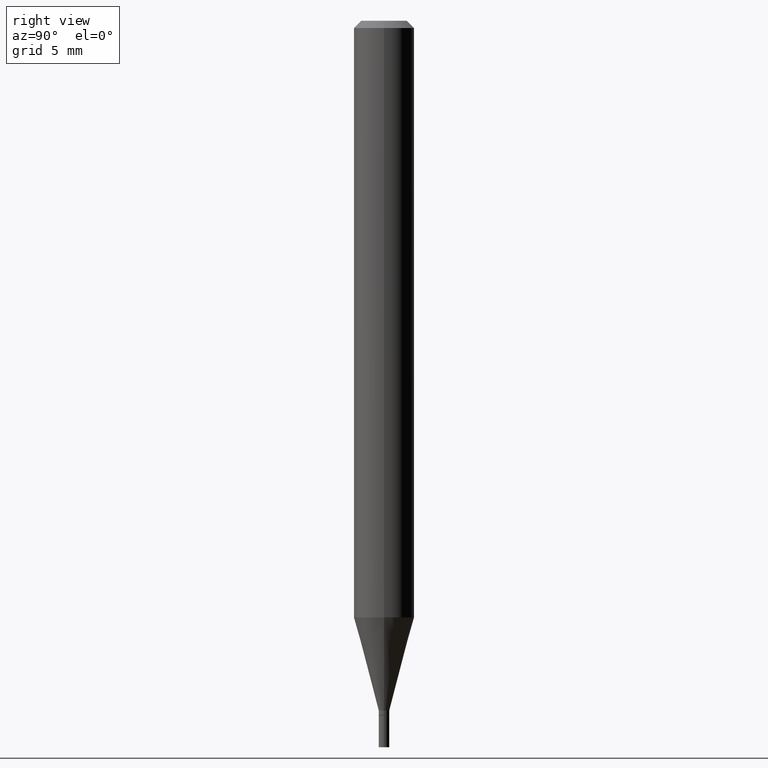
[diagram: clean part render]
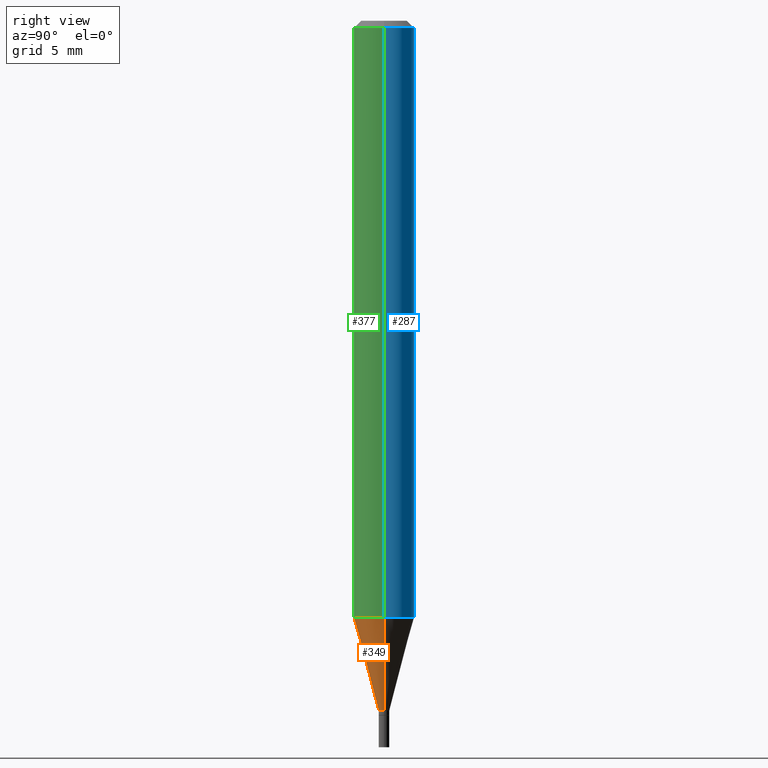
[diagram: same view with three faces highlighted in distinct colors, each labeled with its STEP entity id]
A machine part, right view with three faces highlighted in distinct colors.
Their STEP definitions:

[orange] entity #349 — the highlighted conical surface has half-angle 15 deg.
#5 = DIRECTION ( 'NONE',  ( 1.000000000000000000, -6.982962677686295898E-15, 0.000000000000000000 ) ) ;
#6 = ORIENTED_EDGE ( 'NONE', *, *, #160, .T. ) ;
#8 = VERTEX_POINT ( 'NONE', #300 ) ;
#18 = LINE ( 'NONE', #233, #48 ) ;
#22 = DIRECTION ( 'NONE',  ( 1.000000000000000000, -6.982962677686262766E-15, 0.000000000000000000 ) ) ;
#31 = EDGE_CURVE ( 'NONE', #152, #283, #18, .T. ) ;
#41 = CARTESIAN_POINT ( 'NONE',  ( 3.482347580007634944E-29, -4.971869426512640168E-15, -1.424000000000000155 ) ) ;
#48 = VECTOR ( 'NONE', #90, 39.37007874015748143 ) ;
#51 = EDGE_LOOP ( 'NONE', ( #275, #190, #6, #289 ) ) ;
#67 = CIRCLE ( 'NONE', #329, 0.06250000000000000000 ) ;
#77 = DIRECTION ( 'NONE',  ( -2.445468806185136597E-29, 3.491481338843145583E-15, 1.000000000000000000 ) ) ;
#90 = DIRECTION ( 'NONE',  ( -0.2588190451025216832, 5.211531920934551831E-15, 0.9659258262890679791 ) ) ;
#92 = EDGE_CURVE ( 'NONE', #283, #301, #67, .T. ) ;
#99 = CARTESIAN_POINT ( 'NONE',  ( 3.012326967607737433E-29, -4.300804560375218494E-15, -1.231799383410203452 ) ) ;
#131 = DIRECTION ( 'NONE',  ( -2.445468806185136597E-29, 3.491481338843145583E-15, 1.000000000000000000 ) ) ;
#143 = CARTESIAN_POINT ( 'NONE',  ( 0.01099999999999991956, -5.048682015967188692E-15, -1.424000000000000155 ) ) ;
#144 = DIRECTION ( 'NONE',  ( -2.445468806185136597E-29, 3.491481338843145583E-15, 1.000000000000000000 ) ) ;
#152 = VERTEX_POINT ( 'NONE', #465 ) ;
#160 = EDGE_CURVE ( 'NONE', #8, #301, #345, .T. ) ;
#177 = CONICAL_SURFACE ( 'NONE', #280, 0.01099999999999991956, 0.2617993877991502960 ) ;
#190 = ORIENTED_EDGE ( 'NONE', *, *, #442, .T. ) ;
#213 = CARTESIAN_POINT ( 'NONE',  ( -0.06249999999999997918, -3.856715350525155878E-15, -1.231799383410203452 ) ) ;
#233 = CARTESIAN_POINT ( 'NONE',  ( -0.01099999999999991956, -4.893709725579029078E-15, -1.424000000000000155 ) ) ;
#241 = DIRECTION ( 'NONE',  ( 0.2588190451025216832, 1.565188264969619798E-15, 0.9659258262890679791 ) ) ;
#243 = CIRCLE ( 'NONE', #362, 0.01099999999999991956 ) ;
#252 = DIRECTION ( 'NONE',  ( 1.000000000000000000, -6.982962677686295898E-15, 0.000000000000000000 ) ) ;
#275 = ORIENTED_EDGE ( 'NONE', *, *, #31, .F. ) ;
#280 = AXIS2_PLACEMENT_3D ( 'NONE', #41, #77, #252 ) ;
#283 = VERTEX_POINT ( 'NONE', #213 ) ;
#289 = ORIENTED_EDGE ( 'NONE', *, *, #92, .F. ) ;
#300 = CARTESIAN_POINT ( 'NONE',  ( 0.01099999999999991956, -5.048682015967188692E-15, -1.424000000000000155 ) ) ;
#301 = VERTEX_POINT ( 'NONE', #440 ) ;
#329 = AXIS2_PLACEMENT_3D ( 'NONE', #99, #131, #22 ) ;
#345 = LINE ( 'NONE', #143, #388 ) ;
#349 = ADVANCED_FACE ( 'NONE', ( #356 ), #177, .T. ) ;
#356 = FACE_OUTER_BOUND ( 'NONE', #51, .T. ) ;
#362 = AXIS2_PLACEMENT_3D ( 'NONE', #437, #144, #5 ) ;
#388 = VECTOR ( 'NONE', #241, 39.37007874015748143 ) ;
#437 = CARTESIAN_POINT ( 'NONE',  ( 3.482347580007634944E-29, -4.971869426512640168E-15, -1.424000000000000155 ) ) ;
#440 = CARTESIAN_POINT ( 'NONE',  ( 0.06249999999999997918, -4.737239727730610164E-15, -1.231799383410203452 ) ) ;
#442 = EDGE_CURVE ( 'NONE', #152, #8, #243, .T. ) ;
#465 = CARTESIAN_POINT ( 'NONE',  ( -0.01099999999999991956, -4.375212538052092478E-15, -1.424000000000000155 ) ) ;

[blue] entity #287 — the highlighted cylindrical surface (edge-blend (fillet) strip) has radius 1.5875 mm, axis along (-0, 0, 1).
#33 = AXIS2_PLACEMENT_3D ( 'NONE', #116, #36, #466 ) ;
#36 = DIRECTION ( 'NONE',  ( -2.445468806185136597E-29, 3.491481338843145583E-15, 1.000000000000000000 ) ) ;
#38 = VERTEX_POINT ( 'NONE', #372 ) ;
#40 = AXIS2_PLACEMENT_3D ( 'NONE', #221, #121, #364 ) ;
#94 = EDGE_CURVE ( 'NONE', #301, #401, #272, .T. ) ;
#107 = EDGE_CURVE ( 'NONE', #283, #38, #168, .T. ) ;
#116 = CARTESIAN_POINT ( 'NONE',  ( 3.012326967607737433E-29, -4.300804560375218494E-15, -1.231799383410203452 ) ) ;
#121 = DIRECTION ( 'NONE',  ( -2.445468806185136597E-29, 3.491481338843145583E-15, 1.000000000000000000 ) ) ;
#122 = ORIENTED_EDGE ( 'NONE', *, *, #107, .T. ) ;
#133 = VECTOR ( 'NONE', #385, 39.37007874015748143 ) ;
#147 = DIRECTION ( 'NONE',  ( 1.000000000000000000, -6.982962677686266711E-15, 4.876176775795935793E-29 ) ) ;
#149 = CYLINDRICAL_SURFACE ( 'NONE', #257, 0.06250000000000000000 ) ;
#153 = CIRCLE ( 'NONE', #33, 0.06250000000000000000 ) ;
#168 = LINE ( 'NONE', #171, #133 ) ;
#171 = CARTESIAN_POINT ( 'NONE',  ( -0.06250000000000000000, 4.440892098500626162E-16, -3.074334431409316114E-30 ) ) ;
#184 = CARTESIAN_POINT ( 'NONE',  ( 0.06250000000000000000, -4.888073874380388472E-16, -0.01499999999999999944 ) ) ;
#199 = CIRCLE ( 'NONE', #40, 0.06250000000000000000 ) ;
#213 = CARTESIAN_POINT ( 'NONE',  ( -0.06249999999999997918, -3.856715350525155878E-15, -1.231799383410203452 ) ) ;
#221 = CARTESIAN_POINT ( 'NONE',  ( 3.668203209277705088E-31, -5.237222008264718399E-17, -0.01499999999999999944 ) ) ;
#238 = DIRECTION ( 'NONE',  ( -2.445468806185136877E-29, 3.491481338843145188E-15, 1.000000000000000000 ) ) ;
#257 = AXIS2_PLACEMENT_3D ( 'NONE', #394, #297, #147 ) ;
#272 = LINE ( 'NONE', #412, #420 ) ;
#283 = VERTEX_POINT ( 'NONE', #213 ) ;
#287 = ADVANCED_FACE ( 'NONE', ( #430 ), #149, .T. ) ;
#297 = DIRECTION ( 'NONE',  ( -2.445468806185136597E-29, 3.491481338843145583E-15, 1.000000000000000000 ) ) ;
#301 = VERTEX_POINT ( 'NONE', #440 ) ;
#303 = EDGE_CURVE ( 'NONE', #301, #283, #153, .T. ) ;
#359 = EDGE_LOOP ( 'NONE', ( #368, #122, #444, #393 ) ) ;
#364 = DIRECTION ( 'NONE',  ( 1.000000000000000000, -6.982962677686266711E-15, 0.000000000000000000 ) ) ;
#368 = ORIENTED_EDGE ( 'NONE', *, *, #303, .T. ) ;
#372 = CARTESIAN_POINT ( 'NONE',  ( -0.06250000000000000000, -1.732499180378870171E-15, -0.01499999999999999944 ) ) ;
#385 = DIRECTION ( 'NONE',  ( -2.445468806185136877E-29, 3.491481338843145188E-15, 1.000000000000000000 ) ) ;
#393 = ORIENTED_EDGE ( 'NONE', *, *, #94, .F. ) ;
#394 = CARTESIAN_POINT ( 'NONE',  ( 0.000000000000000000, 0.000000000000000000, 0.000000000000000000 ) ) ;
#401 = VERTEX_POINT ( 'NONE', #184 ) ;
#412 = CARTESIAN_POINT ( 'NONE',  ( 0.06250000000000000000, -4.364351673553916694E-16, 3.047610484872459871E-30 ) ) ;
#420 = VECTOR ( 'NONE', #238, 39.37007874015748143 ) ;
#423 = EDGE_CURVE ( 'NONE', #401, #38, #199, .T. ) ;
#430 = FACE_OUTER_BOUND ( 'NONE', #359, .T. ) ;
#440 = CARTESIAN_POINT ( 'NONE',  ( 0.06249999999999997918, -4.737239727730610164E-15, -1.231799383410203452 ) ) ;
#444 = ORIENTED_EDGE ( 'NONE', *, *, #423, .F. ) ;
#466 = DIRECTION ( 'NONE',  ( 1.000000000000000000, -6.982962677686262766E-15, 0.000000000000000000 ) ) ;

[green] entity #377 — the highlighted cylindrical surface (edge-blend (fillet) strip) has radius 1.5875 mm, axis along (-0, 0, 1).
#3 = FACE_OUTER_BOUND ( 'NONE', #63, .T. ) ;
#22 = DIRECTION ( 'NONE',  ( 1.000000000000000000, -6.982962677686262766E-15, 0.000000000000000000 ) ) ;
#25 = CIRCLE ( 'NONE', #413, 0.06250000000000000000 ) ;
#30 = CARTESIAN_POINT ( 'NONE',  ( 3.668203209277705088E-31, -5.237222008264718399E-17, -0.01499999999999999944 ) ) ;
#38 = VERTEX_POINT ( 'NONE', #372 ) ;
#63 = EDGE_LOOP ( 'NONE', ( #222, #399, #157, #100 ) ) ;
#67 = CIRCLE ( 'NONE', #329, 0.06250000000000000000 ) ;
#79 = DIRECTION ( 'NONE',  ( 1.000000000000000000, -6.982962677686266711E-15, 4.876176775795935793E-29 ) ) ;
#92 = EDGE_CURVE ( 'NONE', #283, #301, #67, .T. ) ;
#94 = EDGE_CURVE ( 'NONE', #301, #401, #272, .T. ) ;
#99 = CARTESIAN_POINT ( 'NONE',  ( 3.012326967607737433E-29, -4.300804560375218494E-15, -1.231799383410203452 ) ) ;
#100 = ORIENTED_EDGE ( 'NONE', *, *, #112, .F. ) ;
#107 = EDGE_CURVE ( 'NONE', #283, #38, #168, .T. ) ;
#112 = EDGE_CURVE ( 'NONE', #38, #401, #25, .T. ) ;
#131 = DIRECTION ( 'NONE',  ( -2.445468806185136597E-29, 3.491481338843145583E-15, 1.000000000000000000 ) ) ;
#133 = VECTOR ( 'NONE', #385, 39.37007874015748143 ) ;
#157 = ORIENTED_EDGE ( 'NONE', *, *, #94, .T. ) ;
#168 = LINE ( 'NONE', #171, #133 ) ;
#171 = CARTESIAN_POINT ( 'NONE',  ( -0.06250000000000000000, 4.440892098500626162E-16, -3.074334431409316114E-30 ) ) ;
#184 = CARTESIAN_POINT ( 'NONE',  ( 0.06250000000000000000, -4.888073874380388472E-16, -0.01499999999999999944 ) ) ;
#212 = AXIS2_PLACEMENT_3D ( 'NONE', #253, #397, #79 ) ;
#213 = CARTESIAN_POINT ( 'NONE',  ( -0.06249999999999997918, -3.856715350525155878E-15, -1.231799383410203452 ) ) ;
#222 = ORIENTED_EDGE ( 'NONE', *, *, #107, .F. ) ;
#238 = DIRECTION ( 'NONE',  ( -2.445468806185136877E-29, 3.491481338843145188E-15, 1.000000000000000000 ) ) ;
#253 = CARTESIAN_POINT ( 'NONE',  ( 0.000000000000000000, 0.000000000000000000, 0.000000000000000000 ) ) ;
#272 = LINE ( 'NONE', #412, #420 ) ;
#283 = VERTEX_POINT ( 'NONE', #213 ) ;
#301 = VERTEX_POINT ( 'NONE', #440 ) ;
#313 = DIRECTION ( 'NONE',  ( -2.445468806185136597E-29, 3.491481338843145583E-15, 1.000000000000000000 ) ) ;
#329 = AXIS2_PLACEMENT_3D ( 'NONE', #99, #131, #22 ) ;
#372 = CARTESIAN_POINT ( 'NONE',  ( -0.06250000000000000000, -1.732499180378870171E-15, -0.01499999999999999944 ) ) ;
#377 = ADVANCED_FACE ( 'NONE', ( #3 ), #431, .T. ) ;
#385 = DIRECTION ( 'NONE',  ( -2.445468806185136877E-29, 3.491481338843145188E-15, 1.000000000000000000 ) ) ;
#397 = DIRECTION ( 'NONE',  ( -2.445468806185136597E-29, 3.491481338843145583E-15, 1.000000000000000000 ) ) ;
#399 = ORIENTED_EDGE ( 'NONE', *, *, #92, .T. ) ;
#401 = VERTEX_POINT ( 'NONE', #184 ) ;
#412 = CARTESIAN_POINT ( 'NONE',  ( 0.06250000000000000000, -4.364351673553916694E-16, 3.047610484872459871E-30 ) ) ;
#413 = AXIS2_PLACEMENT_3D ( 'NONE', #30, #313, #458 ) ;
#420 = VECTOR ( 'NONE', #238, 39.37007874015748143 ) ;
#431 = CYLINDRICAL_SURFACE ( 'NONE', #212, 0.06250000000000000000 ) ;
#440 = CARTESIAN_POINT ( 'NONE',  ( 0.06249999999999997918, -4.737239727730610164E-15, -1.231799383410203452 ) ) ;
#458 = DIRECTION ( 'NONE',  ( 1.000000000000000000, -6.982962677686266711E-15, 0.000000000000000000 ) ) ;